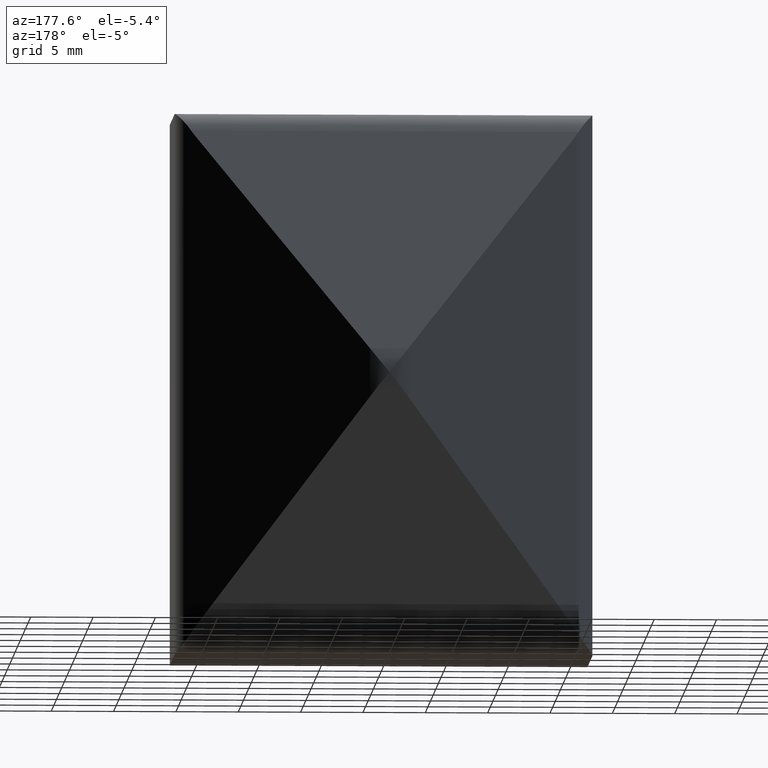
[diagram: clean part render]
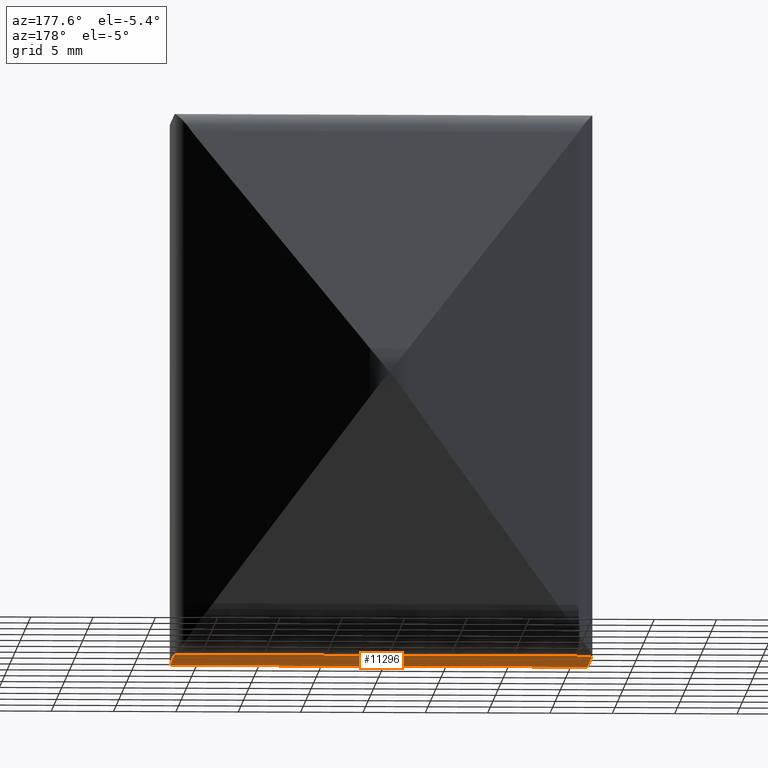
[diagram: same view with one face highlighted and labeled with its STEP entity id]
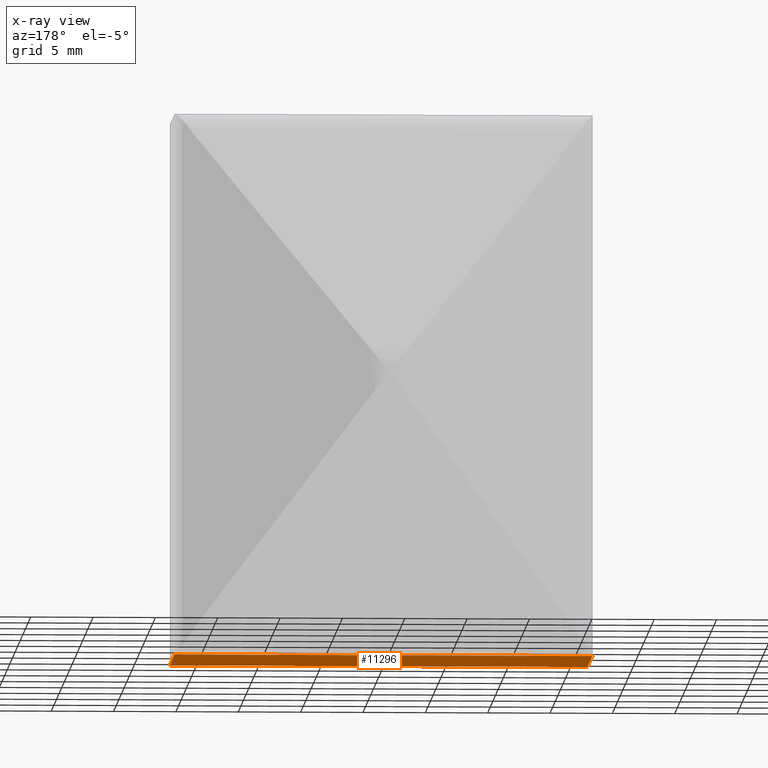
[diagram: x-ray of the same camera — body ghosted, the highlighted face saturated]
A machine part, auxiliary view. The second image highlights one B-rep face of the part: STEP entity #11296.
The next image is the same camera in x-ray: the body ghosted, the highlighted face saturated — about 0% of this face is hidden behind the body in this view.
In plain terms, the highlighted planar face has unit normal (0, 0, 1).
Its self-contained STEP definition (entity closure, byte-faithful):
#16 = FACE_OUTER_BOUND ( 'NONE', #4743, .T. ) ;
#115 = CARTESIAN_POINT ( 'NONE',  ( -13.74999999999998934, 9.296493103079965792, -21.75000000000000000 ) ) ;
#318 = ORIENTED_EDGE ( 'NONE', *, *, #4281, .F. ) ;
#549 = AXIS2_PLACEMENT_3D ( 'NONE', #115, #3985, #6899 ) ;
#823 = EDGE_CURVE ( 'NONE', #2100, #5997, #14241, .T. ) ;
#998 = CARTESIAN_POINT ( 'NONE',  ( -16.74999999999998934, 3.076925082857724936E-15, -21.75000000000000000 ) ) ;
#1247 = LINE ( 'NONE', #998, #10229 ) ;
#2100 = VERTEX_POINT ( 'NONE', #15522 ) ;
#3985 = DIRECTION ( 'NONE',  ( 0.000000000000000000, 0.000000000000000000, 1.000000000000000000 ) ) ;
#4163 = CARTESIAN_POINT ( 'NONE',  ( -26.75000000000000355, 9.296493103079908948, -21.75000000000000000 ) ) ;
#4281 = EDGE_CURVE ( 'NONE', #12129, #9896, #4838, .T. ) ;
#4743 = EDGE_LOOP ( 'NONE', ( #318, #13011, #16422, #12718 ) ) ;
#4838 = LINE ( 'NONE', #4163, #6698 ) ;
#5869 = DIRECTION ( 'NONE',  ( -1.000000000000000000, -1.369541201499284725E-15, 0.000000000000000000 ) ) ;
#5997 = VERTEX_POINT ( 'NONE', #11101 ) ;
#6698 = VECTOR ( 'NONE', #5869, 1000.000000000000000 ) ;
#6899 = DIRECTION ( 'NONE',  ( 1.000000000000000000, 0.000000000000000000, -0.000000000000000000 ) ) ;
#8160 = EDGE_CURVE ( 'NONE', #5997, #12129, #17170, .T. ) ;
#8511 = CARTESIAN_POINT ( 'NONE',  ( -16.74999999999998934, 3.076925082857724936E-15, -21.75000000000000000 ) ) ;
#8872 = VECTOR ( 'NONE', #15311, 1000.000000000000000 ) ;
#9839 = DIRECTION ( 'NONE',  ( 1.000000000000000000, 0.000000000000000000, 0.000000000000000000 ) ) ;
#9896 = VERTEX_POINT ( 'NONE', #12244 ) ;
#10229 = VECTOR ( 'NONE', #11701, 1000.000000000000000 ) ;
#10718 = VECTOR ( 'NONE', #9839, 1000.000000000000000 ) ;
#11101 = CARTESIAN_POINT ( 'NONE',  ( 16.75000000000000711, 3.076925082857724936E-15, -21.75000000000000000 ) ) ;
#11296 = ADVANCED_FACE ( 'NONE', ( #16 ), #16019, .F. ) ;
#11701 = DIRECTION ( 'NONE',  ( -0.000000000000000000, -1.000000000000000000, -0.000000000000000000 ) ) ;
#12129 = VERTEX_POINT ( 'NONE', #14101 ) ;
#12231 = EDGE_CURVE ( 'NONE', #9896, #2100, #1247, .T. ) ;
#12244 = CARTESIAN_POINT ( 'NONE',  ( -16.74999999999998934, 9.296493103079923159, -21.75000000000000000 ) ) ;
#12718 = ORIENTED_EDGE ( 'NONE', *, *, #12231, .F. ) ;
#13011 = ORIENTED_EDGE ( 'NONE', *, *, #8160, .F. ) ;
#14101 = CARTESIAN_POINT ( 'NONE',  ( 16.75000000000000000, 9.296493103079967568, -21.75000000000000000 ) ) ;
#14185 = CARTESIAN_POINT ( 'NONE',  ( 16.74999999999998934, 9.296493103079967568, -21.75000000000000000 ) ) ;
#14241 = LINE ( 'NONE', #8511, #10718 ) ;
#15311 = DIRECTION ( 'NONE',  ( -1.865997701221428019E-15, 1.000000000000000000, -0.000000000000000000 ) ) ;
#15522 = CARTESIAN_POINT ( 'NONE',  ( -16.74999999999998934, 3.076925082857724936E-15, -21.75000000000000000 ) ) ;
#16019 = PLANE ( 'NONE',  #549 ) ;
#16422 = ORIENTED_EDGE ( 'NONE', *, *, #823, .F. ) ;
#17170 = LINE ( 'NONE', #14185, #8872 ) ;